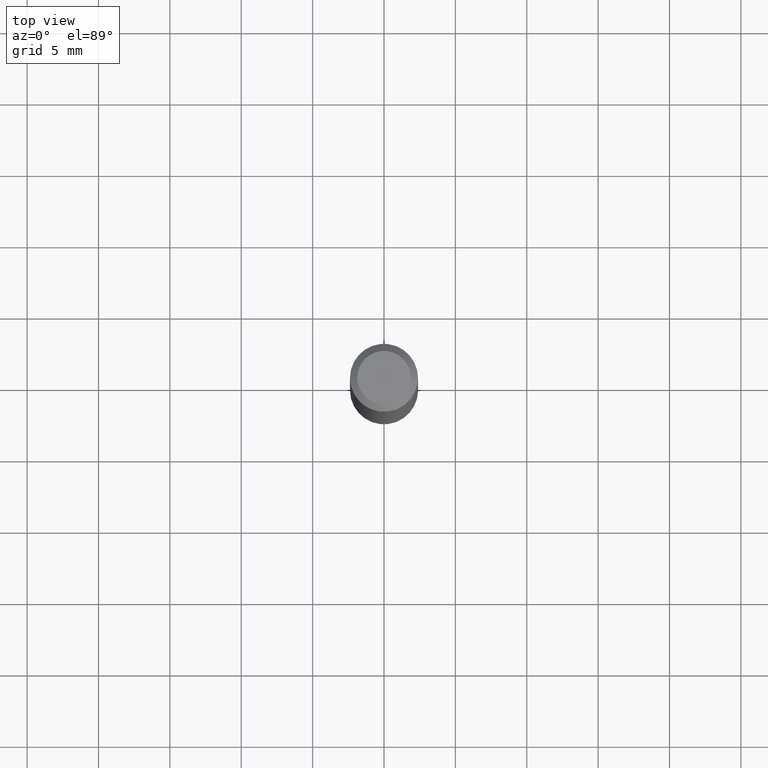
[diagram: clean part render]
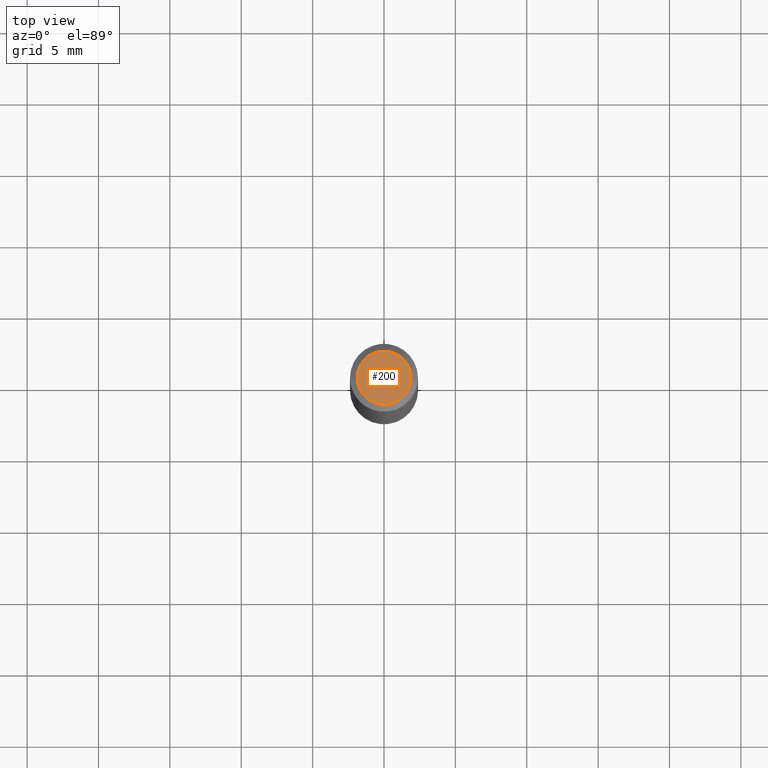
[diagram: same view with one face highlighted and labeled with its STEP entity id]
A machine part, top view. The second image highlights one B-rep face of the part: STEP entity #200.
In plain terms, the highlighted planar face has unit normal (0, -0, -1).
Its self-contained STEP definition (entity closure, byte-faithful):
#49 = DIRECTION ( 'NONE',  ( -1.000000000000000000, 6.982962677686265922E-15, -4.876176775795935793E-29 ) ) ;
#50 = DIRECTION ( 'NONE',  ( 1.000000000000000000, -6.982962677686267499E-15, 4.876176775795935793E-29 ) ) ;
#54 = CARTESIAN_POINT ( 'NONE',  ( 0.000000000000000000, 0.000000000000000000, 0.000000000000000000 ) ) ;
#128 = VERTEX_POINT ( 'NONE', #344 ) ;
#135 = CIRCLE ( 'NONE', #349, 0.07374999999999985734 ) ;
#144 = EDGE_CURVE ( 'NONE', #359, #128, #135, .T. ) ;
#146 = CARTESIAN_POINT ( 'NONE',  ( 0.07374999999999985734, -6.094815207017961198E-16, 3.931526600461598749E-30 ) ) ;
#169 = FACE_OUTER_BOUND ( 'NONE', #228, .T. ) ;
#198 = CIRCLE ( 'NONE', #336, 0.07374999999999985734 ) ;
#200 = ADVANCED_FACE ( 'NONE', ( #169 ), #289, .F. ) ;
#211 = ORIENTED_EDGE ( 'NONE', *, *, #265, .T. ) ;
#224 = CARTESIAN_POINT ( 'NONE',  ( 0.000000000000000000, 0.000000000000000000, 0.000000000000000000 ) ) ;
#228 = EDGE_LOOP ( 'NONE', ( #211, #248 ) ) ;
#232 = DIRECTION ( 'NONE',  ( -2.445468806185136597E-29, 3.491481338843145583E-15, 1.000000000000000000 ) ) ;
#248 = ORIENTED_EDGE ( 'NONE', *, *, #144, .T. ) ;
#260 = DIRECTION ( 'NONE',  ( 2.438088387897960049E-29, -3.491481338843145188E-15, -1.000000000000000000 ) ) ;
#265 = EDGE_CURVE ( 'NONE', #128, #359, #198, .T. ) ;
#289 = PLANE ( 'NONE',  #376 ) ;
#316 = CARTESIAN_POINT ( 'NONE',  ( 5.149934974793612035E-16, 0.07374999999999985734, -2.574967487396814892E-16 ) ) ;
#319 = DIRECTION ( 'NONE',  ( -2.445468806185136597E-29, 3.491481338843145583E-15, 1.000000000000000000 ) ) ;
#336 = AXIS2_PLACEMENT_3D ( 'NONE', #224, #232, #380 ) ;
#344 = CARTESIAN_POINT ( 'NONE',  ( -0.07374999999999985734, 5.499083108677923596E-16, -3.723527850031187664E-30 ) ) ;
#349 = AXIS2_PLACEMENT_3D ( 'NONE', #54, #319, #50 ) ;
#359 = VERTEX_POINT ( 'NONE', #146 ) ;
#376 = AXIS2_PLACEMENT_3D ( 'NONE', #316, #260, #49 ) ;
#380 = DIRECTION ( 'NONE',  ( 1.000000000000000000, -6.982962677686267499E-15, 4.876176775795935793E-29 ) ) ;